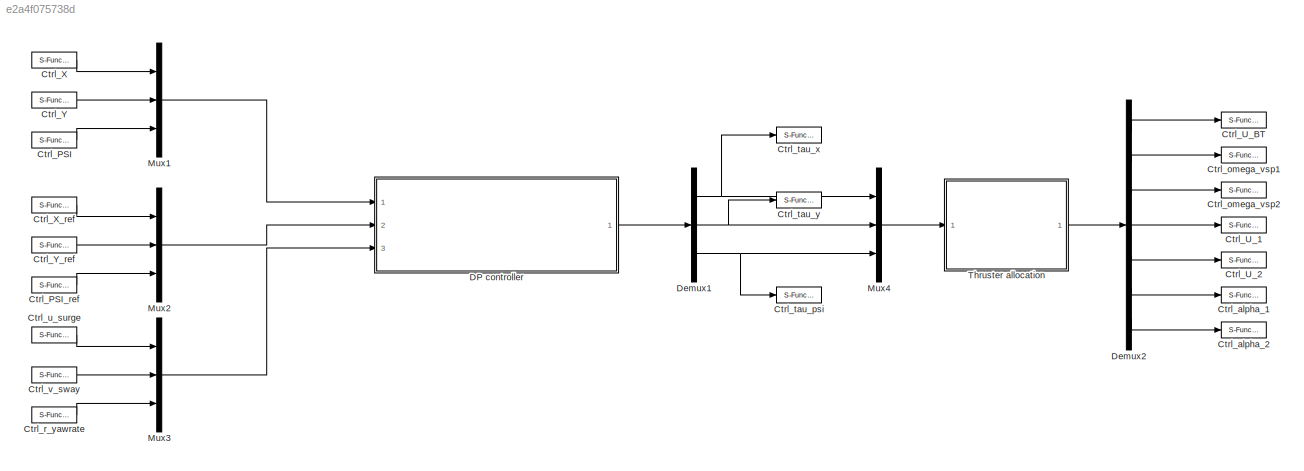
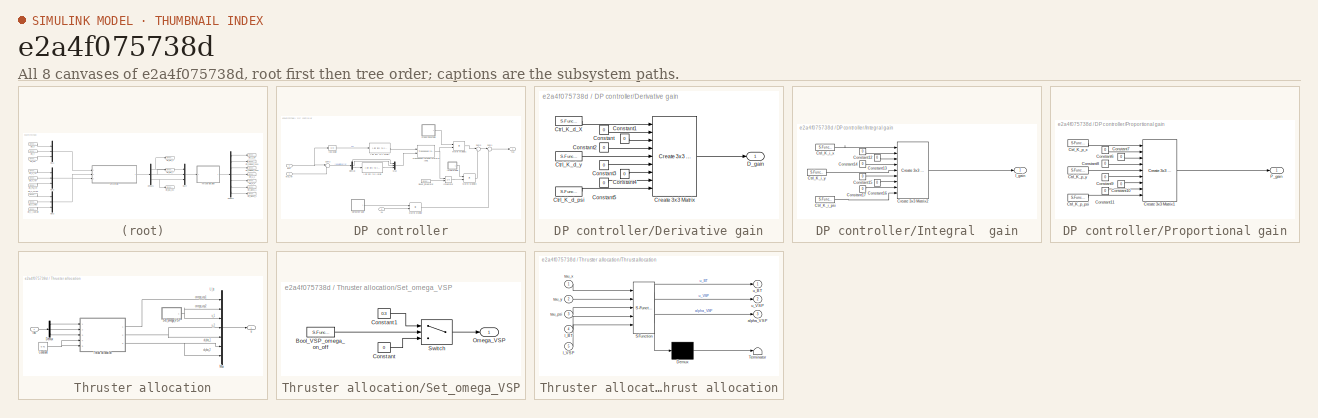
[diagram: thumbnail index - all 8 canvases of the model, root first then tree order]
MODEL slx_e2a4f075738d
KIND model
BLOCK [S-Function] Ctrl_PSI
  CopyFcn = NIVeriStand_MDL_functions('', 'IO_copy');
  DeleteFcn = NIVeriStand_MDL_functions('', 'IO_delete');
  EnableBusSupport = off
  FunctionName = NIVeriStandIO
  MoveFcn = set_param(gcb, 'Mask', 'on');
  Parameters = width dtype portnum stime stype btype
  Ports = [0, 1]
  Priority = 3
BLOCK [S-Function] Ctrl_PSI_ref
  CopyFcn = NIVeriStand_MDL_functions('', 'IO_copy');
  DeleteFcn = NIVeriStand_MDL_functions('', 'IO_delete');
  EnableBusSupport = off
  FunctionName = NIVeriStandIO
  MoveFcn = set_param(gcb, 'Mask', 'on');
  Parameters = width dtype portnum stime stype btype
  Ports = [0, 1]
  Priority = 6
BLOCK [S-Function] Ctrl_U_1
  CopyFcn = NIVeriStand_MDL_functions('', 'IO_copy');
  DeleteFcn = NIVeriStand_MDL_functions('', 'IO_delete');
  EnableBusSupport = off
  FunctionName = NIVeriStandIO
  MoveFcn = set_param(gcb, 'Mask', 'on');
  Parameters = width dtype portnum stime stype btype
  Ports = [1]
  Priority = 7
BLOCK [S-Function] Ctrl_U_2
  CopyFcn = NIVeriStand_MDL_functions('', 'IO_copy');
  DeleteFcn = NIVeriStand_MDL_functions('', 'IO_delete');
  EnableBusSupport = off
  FunctionName = NIVeriStandIO
  MoveFcn = set_param(gcb, 'Mask', 'on');
  Parameters = width dtype portnum stime stype btype
  Ports = [1]
  Priority = 8
BLOCK [S-Function] Ctrl_U_BT
  CopyFcn = NIVeriStand_MDL_functions('', 'IO_copy');
  DeleteFcn = NIVeriStand_MDL_functions('', 'IO_delete');
  EnableBusSupport = off
  FunctionName = NIVeriStandIO
  MoveFcn = set_param(gcb, 'Mask', 'on');
  Parameters = width dtype portnum stime stype btype
  Ports = [1]
  Priority = 4
BLOCK [S-Function] Ctrl_X
  CopyFcn = NIVeriStand_MDL_functions('', 'IO_copy');
  DeleteFcn = NIVeriStand_MDL_functions('', 'IO_delete');
  EnableBusSupport = off
  FunctionName = NIVeriStandIO
  MoveFcn = set_param(gcb, 'Mask', 'on');
  Parameters = width dtype portnum stime stype btype
  Ports = [0, 1]
  Priority = 1
BLOCK [S-Function] Ctrl_X_ref
  CopyFcn = NIVeriStand_MDL_functions('', 'IO_copy');
  DeleteFcn = NIVeriStand_MDL_functions('', 'IO_delete');
  EnableBusSupport = off
  FunctionName = NIVeriStandIO
  MoveFcn = set_param(gcb, 'Mask', 'on');
  Parameters = width dtype portnum stime stype btype
  Ports = [0, 1]
  Priority = 4
BLOCK [S-Function] Ctrl_Y
  CopyFcn = NIVeriStand_MDL_functions('', 'IO_copy');
  DeleteFcn = NIVeriStand_MDL_functions('', 'IO_delete');
  EnableBusSupport = off
  FunctionName = NIVeriStandIO
  MoveFcn = set_param(gcb, 'Mask', 'on');
  Parameters = width dtype portnum stime stype btype
  Ports = [0, 1]
  Priority = 2
BLOCK [S-Function] Ctrl_Y_ref
  CopyFcn = NIVeriStand_MDL_functions('', 'IO_copy');
  DeleteFcn = NIVeriStand_MDL_functions('', 'IO_delete');
  EnableBusSupport = off
  FunctionName = NIVeriStandIO
  MoveFcn = set_param(gcb, 'Mask', 'on');
  Parameters = width dtype portnum stime stype btype
  Ports = [0, 1]
  Priority = 5
BLOCK [S-Function] Ctrl_alpha_1
  CopyFcn = NIVeriStand_MDL_functions('', 'IO_copy');
  DeleteFcn = NIVeriStand_MDL_functions('', 'IO_delete');
  EnableBusSupport = off
  FunctionName = NIVeriStandIO
  MoveFcn = set_param(gcb, 'Mask', 'on');
  Parameters = width dtype portnum stime stype btype
  Ports = [1]
  Priority = 9
BLOCK [S-Function] Ctrl_alpha_2
  CopyFcn = NIVeriStand_MDL_functions('', 'IO_copy');
  DeleteFcn = NIVeriStand_MDL_functions('', 'IO_delete');
  EnableBusSupport = off
  FunctionName = NIVeriStandIO
  MoveFcn = set_param(gcb, 'Mask', 'on');
  Parameters = width dtype portnum stime stype btype
  Ports = [1]
  Priority = 10
BLOCK [S-Function] Ctrl_omega_vsp1
  CopyFcn = NIVeriStand_MDL_functions('', 'IO_copy');
  DeleteFcn = NIVeriStand_MDL_functions('', 'IO_delete');
  EnableBusSupport = off
  FunctionName = NIVeriStandIO
  MoveFcn = set_param(gcb, 'Mask', 'on');
  Parameters = width dtype portnum stime stype btype
  Ports = [1]
  Priority = 5
BLOCK [S-Function] Ctrl_omega_vsp2
  CopyFcn = NIVeriStand_MDL_functions('', 'IO_copy');
  DeleteFcn = NIVeriStand_MDL_functions('', 'IO_delete');
  EnableBusSupport = off
  FunctionName = NIVeriStandIO
  MoveFcn = set_param(gcb, 'Mask', 'on');
  Parameters = width dtype portnum stime stype btype
  Ports = [1]
  Priority = 6
BLOCK [S-Function] Ctrl_r_yawrate
  CopyFcn = NIVeriStand_MDL_functions('', 'IO_copy');
  DeleteFcn = NIVeriStand_MDL_functions('', 'IO_delete');
  EnableBusSupport = off
  FunctionName = NIVeriStandIO
  MoveFcn = set_param(gcb, 'Mask', 'on');
  Parameters = width dtype portnum stime stype btype
  Ports = [0, 1]
  Priority = 7
BLOCK [S-Function] Ctrl_tau_psi
  CopyFcn = NIVeriStand_MDL_functions('', 'IO_copy');
  DeleteFcn = NIVeriStand_MDL_functions('', 'IO_delete');
  EnableBusSupport = off
  FunctionName = NIVeriStandIO
  MoveFcn = set_param(gcb, 'Mask', 'on');
  Parameters = width dtype portnum stime stype btype
  Ports = [1]
  Priority = 3
BLOCK [S-Function] Ctrl_tau_x
  CopyFcn = NIVeriStand_MDL_functions('', 'IO_copy');
  DeleteFcn = NIVeriStand_MDL_functions('', 'IO_delete');
  EnableBusSupport = off
  FunctionName = NIVeriStandIO
  MoveFcn = set_param(gcb, 'Mask', 'on');
  Parameters = width dtype portnum stime stype btype
  Ports = [1]
  Priority = 1
BLOCK [S-Function] Ctrl_tau_y
  CopyFcn = NIVeriStand_MDL_functions('', 'IO_copy');
  DeleteFcn = NIVeriStand_MDL_functions('', 'IO_delete');
  EnableBusSupport = off
  FunctionName = NIVeriStandIO
  MoveFcn = set_param(gcb, 'Mask', 'on');
  Parameters = width dtype portnum stime stype btype
  Ports = [1]
  Priority = 2
BLOCK [S-Function] Ctrl_u_surge
  CopyFcn = NIVeriStand_MDL_functions('', 'IO_copy');
  DeleteFcn = NIVeriStand_MDL_functions('', 'IO_delete');
  EnableBusSupport = off
  FunctionName = NIVeriStandIO
  MoveFcn = set_param(gcb, 'Mask', 'on');
  Parameters = width dtype portnum stime stype btype
  Ports = [0, 1]
  Priority = 8
BLOCK [S-Function] Ctrl_v_sway
  CopyFcn = NIVeriStand_MDL_functions('', 'IO_copy');
  DeleteFcn = NIVeriStand_MDL_functions('', 'IO_delete');
  EnableBusSupport = off
  FunctionName = NIVeriStandIO
  MoveFcn = set_param(gcb, 'Mask', 'on');
  Parameters = width dtype portnum stime stype btype
  Ports = [0, 1]
  Priority = 9
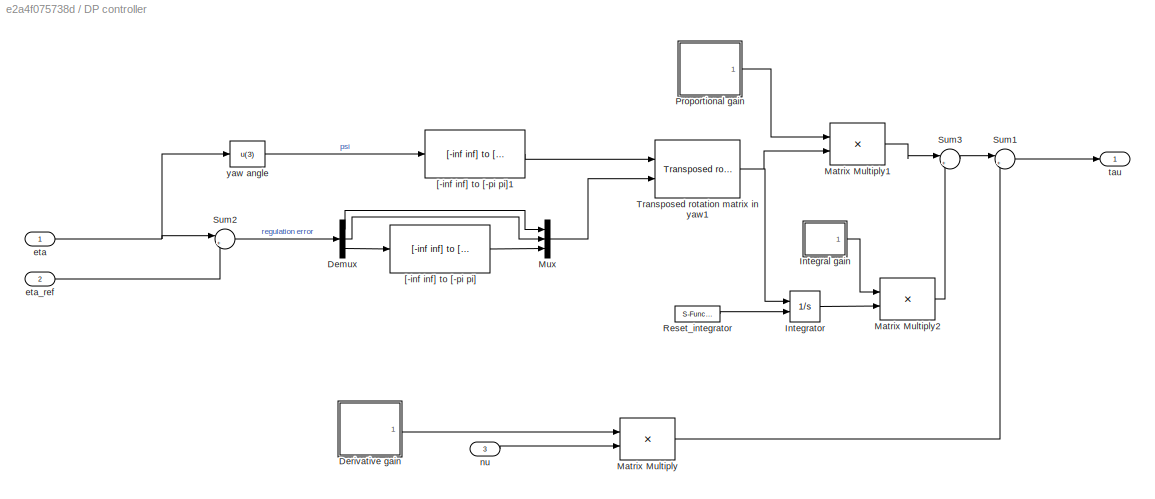
BLOCK [SubSystem] DP controller
  Ports = [3, 1]
  RequestExecContextInheritance = off
BLOCK [Demux] DP controller/Demux
  DisplayOption = bar
  Outputs = 3
  Ports = [1, 3]
BLOCK [SubSystem] DP controller/Derivative gain
  Ports = [0, 1]
  RequestExecContextInheritance = off
BLOCK [Constant] DP controller/Derivative gain/Constant
  Value = 0
BLOCK [Constant] DP controller/Derivative gain/Constant1
  Value = 0
BLOCK [Constant] DP controller/Derivative gain/Constant2
  Value = 0
BLOCK [Constant] DP controller/Derivative gain/Constant3
  Value = 0
BLOCK [Constant] DP controller/Derivative gain/Constant4
  Value = 0
BLOCK [Constant] DP controller/Derivative gain/Constant5
  Value = 0
BLOCK [Reference] DP controller/Derivative gain/Create 3x3 Matrix  REF=aerolibutil/Create 3x3 Matrix
  Ports = [9, 1]
  SourceBlock = aerolibutil/Create 3x3 Matrix
  SourceType = Create 3x3 Matrix
BLOCK [S-Function] DP controller/Derivative gain/Ctrl_K_d_X
  CopyFcn = NIVeriStand_MDL_functions('', 'IO_copy');
  DeleteFcn = NIVeriStand_MDL_functions('', 'IO_delete');
  EnableBusSupport = off
  FunctionName = NIVeriStandIO
  MoveFcn = set_param(gcb, 'Mask', 'on');
  Parameters = width dtype portnum stime stype btype
  Ports = [0, 1]
  Priority = 1
BLOCK [S-Function] DP controller/Derivative gain/Ctrl_K_d_psi
  CopyFcn = NIVeriStand_MDL_functions('', 'IO_copy');
  DeleteFcn = NIVeriStand_MDL_functions('', 'IO_delete');
  EnableBusSupport = off
  FunctionName = NIVeriStandIO
  MoveFcn = set_param(gcb, 'Mask', 'on');
  Parameters = width dtype portnum stime stype btype
  Ports = [0, 1]
  Priority = 2
BLOCK [S-Function] DP controller/Derivative gain/Ctrl_K_d_y
  CopyFcn = NIVeriStand_MDL_functions('', 'IO_copy');
  DeleteFcn = NIVeriStand_MDL_functions('', 'IO_delete');
  EnableBusSupport = off
  FunctionName = NIVeriStandIO
  MoveFcn = set_param(gcb, 'Mask', 'on');
  Parameters = width dtype portnum stime stype btype
  Ports = [0, 1]
  Priority = 3
BLOCK [Outport] DP controller/Derivative gain/D_gain
  IconDisplay = Port number
BLOCK [SubSystem] DP controller/Integral  gain
  Ports = [0, 1]
  RequestExecContextInheritance = off
BLOCK [Constant] DP controller/Integral  gain/Constant12
  Value = 0
BLOCK [Constant] DP controller/Integral  gain/Constant13
  Value = 0
BLOCK [Constant] DP controller/Integral  gain/Constant14
  Value = 0
BLOCK [Constant] DP controller/Integral  gain/Constant15
  Value = 0
BLOCK [Constant] DP controller/Integral  gain/Constant16
  Value = 0
BLOCK [Constant] DP controller/Integral  gain/Constant17
  Value = 0
BLOCK [Reference] DP controller/Integral  gain/Create 3x3 Matrix2  REF=aerolibutil/Create 3x3 Matrix
  Ports = [9, 1]
  SourceBlock = aerolibutil/Create 3x3 Matrix
  SourceType = Create 3x3 Matrix
BLOCK [S-Function] DP controller/Integral  gain/Ctrl_K_i_psi
  CopyFcn = NIVeriStand_MDL_functions('', 'IO_copy');
  DeleteFcn = NIVeriStand_MDL_functions('', 'IO_delete');
  EnableBusSupport = off
  FunctionName = NIVeriStandIO
  MoveFcn = set_param(gcb, 'Mask', 'on');
  Parameters = width dtype portnum stime stype btype
  Ports = [0, 1]
  Priority = 1
BLOCK [S-Function] DP controller/Integral  gain/Ctrl_K_i_x
  CopyFcn = NIVeriStand_MDL_functions('', 'IO_copy');
  DeleteFcn = NIVeriStand_MDL_functions('', 'IO_delete');
  EnableBusSupport = off
  FunctionName = NIVeriStandIO
  MoveFcn = set_param(gcb, 'Mask', 'on');
  Parameters = width dtype portnum stime stype btype
  Ports = [0, 1]
  Priority = 2
BLOCK [S-Function] DP controller/Integral  gain/Ctrl_K_i_y
  CopyFcn = NIVeriStand_MDL_functions('', 'IO_copy');
  DeleteFcn = NIVeriStand_MDL_functions('', 'IO_delete');
  EnableBusSupport = off
  FunctionName = NIVeriStandIO
  MoveFcn = set_param(gcb, 'Mask', 'on');
  Parameters = width dtype portnum stime stype btype
  Ports = [0, 1]
  Priority = 3
BLOCK [Outport] DP controller/Integral  gain/I_gain
  IconDisplay = Port number
BLOCK [Integrator] DP controller/Integrator
  ExternalReset = level
  Ports = [2, 1]
BLOCK [Product] DP controller/Matrix Multiply
  InputSameDT = off
  Multiplication = Matrix(*)
  OutDataTypeStr = Inherit: Inherit via internal rule
  Ports = [2, 1]
  RndMeth = Floor
  SaturateOnIntegerOverflow = off
BLOCK [Product] DP controller/Matrix Multiply1
  InputSameDT = off
  Multiplication = Matrix(*)
  OutDataTypeStr = Inherit: Inherit via internal rule
  Ports = [2, 1]
  RndMeth = Floor
  SaturateOnIntegerOverflow = off
BLOCK [Product] DP controller/Matrix Multiply2
  InputSameDT = off
  Multiplication = Matrix(*)
  OutDataTypeStr = Inherit: Inherit via internal rule
  Ports = [2, 1]
  RndMeth = Floor
  SaturateOnIntegerOverflow = off
BLOCK [Mux] DP controller/Mux
  DisplayOption = bar
  Inputs = 3
  Ports = [3, 1]
BLOCK [SubSystem] DP controller/Proportional gain
  Ports = [0, 1]
  RequestExecContextInheritance = off
BLOCK [Constant] DP controller/Proportional gain/Constant10
  Value = 0
BLOCK [Constant] DP controller/Proportional gain/Constant11
  Value = 0
BLOCK [Constant] DP controller/Proportional gain/Constant6
  Value = 0
BLOCK [Constant] DP controller/Proportional gain/Constant7
  Value = 0
BLOCK [Constant] DP controller/Proportional gain/Constant8
  Value = 0
BLOCK [Constant] DP controller/Proportional gain/Constant9
  Value = 0
BLOCK [Reference] DP controller/Proportional gain/Create 3x3 Matrix1  REF=aerolibutil/Create 3x3 Matrix
  Ports = [9, 1]
  SourceBlock = aerolibutil/Create 3x3 Matrix
  SourceType = Create 3x3 Matrix
BLOCK [S-Function] DP controller/Proportional gain/Ctrl_K_p_psi
  CopyFcn = NIVeriStand_MDL_functions('', 'IO_copy');
  DeleteFcn = NIVeriStand_MDL_functions('', 'IO_delete');
  EnableBusSupport = off
  FunctionName = NIVeriStandIO
  MoveFcn = set_param(gcb, 'Mask', 'on');
  Parameters = width dtype portnum stime stype btype
  Ports = [0, 1]
  Priority = 1
BLOCK [S-Function] DP controller/Proportional gain/Ctrl_K_p_x
  CopyFcn = NIVeriStand_MDL_functions('', 'IO_copy');
  DeleteFcn = NIVeriStand_MDL_functions('', 'IO_delete');
  EnableBusSupport = off
  FunctionName = NIVeriStandIO
  MoveFcn = set_param(gcb, 'Mask', 'on');
  Parameters = width dtype portnum stime stype btype
  Ports = [0, 1]
  Priority = 2
BLOCK [S-Function] DP controller/Proportional gain/Ctrl_K_p_y
  CopyFcn = NIVeriStand_MDL_functions('', 'IO_copy');
  DeleteFcn = NIVeriStand_MDL_functions('', 'IO_delete');
  EnableBusSupport = off
  FunctionName = NIVeriStandIO
  MoveFcn = set_param(gcb, 'Mask', 'on');
  Parameters = width dtype portnum stime stype btype
  Ports = [0, 1]
  Priority = 3
BLOCK [Outport] DP controller/Proportional gain/P_gain
  IconDisplay = Port number
BLOCK [S-Function] DP controller/Reset_integrator
  CopyFcn = NIVeriStand_MDL_functions('', 'IO_copy');
  DeleteFcn = NIVeriStand_MDL_functions('', 'IO_delete');
  EnableBusSupport = off
  FunctionName = NIVeriStandIO
  MoveFcn = set_param(gcb, 'Mask', 'on');
  Parameters = width dtype portnum stime stype btype
  Ports = [0, 1]
  Priority = 1
BLOCK [Sum] DP controller/Sum1
  IconShape = round
  Inputs = |+-
  Ports = [2, 1]
BLOCK [Sum] DP controller/Sum2
  IconShape = round
  Inputs = |+-
  Ports = [2, 1]
BLOCK [Sum] DP controller/Sum3
  IconShape = round
  Inputs = |++
  Ports = [2, 1]
BLOCK [Reference] DP controller/Transposed rotation matrix in yaw1  REF=marine_gnc/Models/ Kinematics/Transposed rotation  (lib defined in mdl_10d96c221ba8, mdl_45f1105420c6)
 matrix in yaw
  Ports = [2, 1]
  SourceBlock = marine_gnc/Models/ Kinematics/Transposed rotation\n matrix in yaw
BLOCK [Reference] DP controller/[-inf inf] to [-pi pi]  REF=marine_gnc/Utilities/Math Operations/[-inf inf] to [-pi pi]  (lib defined in mdl_10d96c221ba8, mdl_45f1105420c6)
  Ports = [1, 1]
  SourceBlock = marine_gnc/Utilities/Math Operations/[-inf inf] to [-pi pi]
  SourceType = [-inf inf] to [-pi pi]
BLOCK [Reference] DP controller/[-inf inf] to [-pi pi]1  REF=marine_gnc/Utilities/Math Operations/[-inf inf] to [-pi pi]  (lib defined in mdl_10d96c221ba8, mdl_45f1105420c6)
  Ports = [1, 1]
  SourceBlock = marine_gnc/Utilities/Math Operations/[-inf inf] to [-pi pi]
  SourceType = [-inf inf] to [-pi pi]
BLOCK [Inport] DP controller/eta
  IconDisplay = Port number
BLOCK [Inport] DP controller/eta_ref
  IconDisplay = Port number
  Port = 2
BLOCK [Inport] DP controller/nu
  IconDisplay = Port number
  Port = 3
BLOCK [Outport] DP controller/tau
  IconDisplay = Port number
BLOCK [Fcn] DP controller/yaw angle
  Expr = u(3)
BLOCK [Demux] Demux1
  DisplayOption = bar
  Outputs = 3
  Ports = [1, 3]
BLOCK [Demux] Demux2
  DisplayOption = bar
  Outputs = 7
  Ports = [1, 7]
BLOCK [Mux] Mux1
  DisplayOption = bar
  Inputs = 3
  Ports = [3, 1]
BLOCK [Mux] Mux2
  DisplayOption = bar
  Inputs = 3
  Ports = [3, 1]
BLOCK [Mux] Mux3
  DisplayOption = bar
  Inputs = 3
  Ports = [3, 1]
BLOCK [Mux] Mux4
  DisplayOption = bar
  Inputs = 3
  Ports = [3, 1]
BLOCK [SubSystem] Thruster allocation
  Ports = [1, 1]
  RequestExecContextInheritance = off
BLOCK [Constant] Thruster allocation/Constant
  Value = 0.42
BLOCK [Demux] Thruster allocation/Demux
  DisplayOption = bar
  Outputs = 3
  Ports = [1, 3]
BLOCK [Mux] Thruster allocation/Mux
  DisplayOption = bar
  Inputs = 7
  Ports = [7, 1]
BLOCK [SubSystem] Thruster allocation/Set_omega_VSP
  Ports = [0, 1]
  RequestExecContextInheritance = off
BLOCK [S-Function] Thruster allocation/Set_omega_VSP/Bool_VSP_omega_on_off
  CopyFcn = NIVeriStand_MDL_functions('', 'IO_copy');
  DeleteFcn = NIVeriStand_MDL_functions('', 'IO_delete');
  EnableBusSupport = off
  FunctionName = NIVeriStandIO
  MoveFcn = set_param(gcb, 'Mask', 'on');
  Parameters = width dtype portnum stime stype btype
  Ports = [0, 1]
  Priority = 1
BLOCK [Constant] Thruster allocation/Set_omega_VSP/Constant
  Value = 0
BLOCK [Constant] Thruster allocation/Set_omega_VSP/Constant1
  Value = 0.3
BLOCK [Outport] Thruster allocation/Set_omega_VSP/Omega_VSP
  IconDisplay = Port number
BLOCK [Switch] Thruster allocation/Set_omega_VSP/Switch
  Criteria = u2 ~= 0
  InputSameDT = off
  SaturateOnIntegerOverflow = off
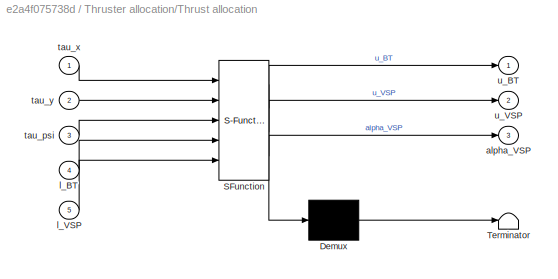
BLOCK [SubSystem] Thruster allocation/Thrust allocation
  ErrorFcn = Stateflow.Translate.translate
  PermitHierarchicalResolution = ExplicitOnly
  Ports = [5, 3]
  RequestExecContextInheritance = off
  SFBlockType = MATLAB Function
  TreatAsAtomicUnit = on
BLOCK [Demux] Thruster allocation/Thrust allocation/ Demux 
  Outputs = 1
  Ports = [1, 1]
BLOCK [S-Function] Thruster allocation/Thrust allocation/ SFunction 
  EnableBusSupport = on
  FunctionName = sf_sfun
  PortCounts = [5 4]
  Ports = [5, 4]
  Tag = Stateflow S-Function ctrl_DP_mss 2
BLOCK [Terminator] Thruster allocation/Thrust allocation/ Terminator 
BLOCK [Outport] Thruster allocation/Thrust allocation/alpha_VSP
  IconDisplay = Port number
  Port = 3
BLOCK [Inport] Thruster allocation/Thrust allocation/l_BT
  IconDisplay = Port number
  Port = 4
BLOCK [Inport] Thruster allocation/Thrust allocation/l_VSP
  IconDisplay = Port number
  Port = 5
BLOCK [Inport] Thruster allocation/Thrust allocation/tau_psi
  IconDisplay = Port number
  Port = 3
BLOCK [Inport] Thruster allocation/Thrust allocation/tau_x
  IconDisplay = Port number
BLOCK [Inport] Thruster allocation/Thrust allocation/tau_y
  IconDisplay = Port number
  Port = 2
BLOCK [Outport] Thruster allocation/Thrust allocation/u_BT
  IconDisplay = Port number
BLOCK [Outport] Thruster allocation/Thrust allocation/u_VSP
  IconDisplay = Port number
  Port = 2
BLOCK [Inport] Thruster allocation/tau
  IconDisplay = Port number
BLOCK [Outport] Thruster allocation/u
  IconDisplay = Port number
ANNOTATION Thruster allocation: U_bt
ANNOTATION Thruster allocation: alpha_1
ANNOTATION Thruster allocation: alpha_2
ANNOTATION Thruster allocation: omega_vsp1
ANNOTATION Thruster allocation: omega_vsp2
ANNOTATION Thruster allocation: u_1
ANNOTATION Thruster allocation: u_2
LINE Ctrl_PSI:1 -> Mux1:3
LINE Ctrl_PSI_ref:1 -> Mux2:3
LINE Ctrl_X:1 -> Mux1:1
LINE Ctrl_X_ref:1 -> Mux2:1
LINE Ctrl_Y:1 -> Mux1:2
LINE Ctrl_Y_ref:1 -> Mux2:2
LINE Ctrl_r_yawrate:1 -> Mux3:3
LINE Ctrl_u_surge:1 -> Mux3:1
LINE Ctrl_v_sway:1 -> Mux3:2
LINE DP controller/Demux:1 -> DP controller/Mux:1
LINE DP controller/Demux:2 -> DP controller/Mux:2
LINE DP controller/Demux:3 -> DP controller/[-inf inf] to [-pi pi]:1
LINE DP controller/Derivative gain/Constant1:1 -> DP controller/Derivative gain/Create 3x3 Matrix:3
LINE DP controller/Derivative gain/Constant2:1 -> DP controller/Derivative gain/Create 3x3 Matrix:4
LINE DP controller/Derivative gain/Constant3:1 -> DP controller/Derivative gain/Create 3x3 Matrix:6
LINE DP controller/Derivative gain/Constant4:1 -> DP controller/Derivative gain/Create 3x3 Matrix:7
LINE DP controller/Derivative gain/Constant5:1 -> DP controller/Derivative gain/Create 3x3 Matrix:8
LINE DP controller/Derivative gain/Constant:1 -> DP controller/Derivative gain/Create 3x3 Matrix:2
LINE DP controller/Derivative gain/Create 3x3 Matrix:1 -> DP controller/Derivative gain/D_gain:1
LINE DP controller/Derivative gain/Ctrl_K_d_X:1 -> DP controller/Derivative gain/Create 3x3 Matrix:1
LINE DP controller/Derivative gain/Ctrl_K_d_psi:1 -> DP controller/Derivative gain/Create 3x3 Matrix:9
LINE DP controller/Derivative gain/Ctrl_K_d_y:1 -> DP controller/Derivative gain/Create 3x3 Matrix:5
LINE DP controller/Derivative gain:1 -> DP controller/Matrix Multiply:1
LINE DP controller/Integral  gain/Constant12:1 -> DP controller/Integral  gain/Create 3x3 Matrix2:2
LINE DP controller/Integral  gain/Constant13:1 -> DP controller/Integral  gain/Create 3x3 Matrix2:3
LINE DP controller/Integral  gain/Constant14:1 -> DP controller/Integral  gain/Create 3x3 Matrix2:4
LINE DP controller/Integral  gain/Constant15:1 -> DP controller/Integral  gain/Create 3x3 Matrix2:6
LINE DP controller/Integral  gain/Constant16:1 -> DP controller/Integral  gain/Create 3x3 Matrix2:7
LINE DP controller/Integral  gain/Constant17:1 -> DP controller/Integral  gain/Create 3x3 Matrix2:8
LINE DP controller/Integral  gain/Create 3x3 Matrix2:1 -> DP controller/Integral  gain/I_gain:1
LINE DP controller/Integral  gain/Ctrl_K_i_psi:1 -> DP controller/Integral  gain/Create 3x3 Matrix2:9
LINE DP controller/Integral  gain/Ctrl_K_i_x:1 -> DP controller/Integral  gain/Create 3x3 Matrix2:1
LINE DP controller/Integral  gain/Ctrl_K_i_y:1 -> DP controller/Integral  gain/Create 3x3 Matrix2:5
LINE DP controller/Integral  gain:1 -> DP controller/Matrix Multiply2:1
LINE DP controller/Integrator:1 -> DP controller/Matrix Multiply2:2
LINE DP controller/Matrix Multiply1:1 -> DP controller/Sum3:1
LINE DP controller/Matrix Multiply2:1 -> DP controller/Sum3:2
LINE DP controller/Matrix Multiply:1 -> DP controller/Sum1:2
LINE DP controller/Mux:1 -> DP controller/Transposed rotation matrix in yaw1:2
LINE DP controller/Proportional gain/Constant10:1 -> DP controller/Proportional gain/Create 3x3 Matrix1:7
LINE DP controller/Proportional gain/Constant11:1 -> DP controller/Proportional gain/Create 3x3 Matrix1:8
LINE DP controller/Proportional gain/Constant6:1 -> DP controller/Proportional gain/Create 3x3 Matrix1:2
LINE DP controller/Proportional gain/Constant7:1 -> DP controller/Proportional gain/Create 3x3 Matrix1:3
LINE DP controller/Proportional gain/Constant8:1 -> DP controller/Proportional gain/Create 3x3 Matrix1:4
LINE DP controller/Proportional gain/Constant9:1 -> DP controller/Proportional gain/Create 3x3 Matrix1:6
LINE DP controller/Proportional gain/Create 3x3 Matrix1:1 -> DP controller/Proportional gain/P_gain:1
LINE DP controller/Proportional gain/Ctrl_K_p_psi:1 -> DP controller/Proportional gain/Create 3x3 Matrix1:9
LINE DP controller/Proportional gain/Ctrl_K_p_x:1 -> DP controller/Proportional gain/Create 3x3 Matrix1:1
LINE DP controller/Proportional gain/Ctrl_K_p_y:1 -> DP controller/Proportional gain/Create 3x3 Matrix1:5
LINE DP controller/Proportional gain:1 -> DP controller/Matrix Multiply1:1
LINE DP controller/Reset_integrator:1 -> DP controller/Integrator:2
LINE DP controller/Sum1:1 -> DP controller/tau:1
LINE DP controller/Sum2:1 -> DP controller/Demux:1
LINE DP controller/Sum3:1 -> DP controller/Sum1:1
NET DP controller/Transposed rotation matrix in yaw1:1 -> DP controller/Integrator:1, DP controller/Matrix Multiply1:2
LINE DP controller/[-inf inf] to [-pi pi]1:1 -> DP controller/Transposed rotation matrix in yaw1:1
LINE DP controller/[-inf inf] to [-pi pi]:1 -> DP controller/Mux:3
NET DP controller/eta:1 -> DP controller/Sum2:1, DP controller/yaw angle:1
LINE DP controller/eta_ref:1 -> DP controller/Sum2:2
LINE DP controller/nu:1 -> DP controller/Matrix Multiply:2
LINE DP controller/yaw angle:1 -> DP controller/[-inf inf] to [-pi pi]1:1
LINE DP controller:1 -> Demux1:1
NET Demux1:1 -> Ctrl_tau_x:1, Mux4:1
NET Demux1:2 -> Ctrl_tau_y:1, Mux4:2
NET Demux1:3 -> Ctrl_tau_psi:1, Mux4:3
LINE Demux2:1 -> Ctrl_U_BT:1
LINE Demux2:2 -> Ctrl_omega_vsp1:1
LINE Demux2:3 -> Ctrl_omega_vsp2:1
LINE Demux2:4 -> Ctrl_U_1:1
LINE Demux2:5 -> Ctrl_U_2:1
LINE Demux2:6 -> Ctrl_alpha_1:1
LINE Demux2:7 -> Ctrl_alpha_2:1
LINE Mux1:1 -> DP controller:1
LINE Mux2:1 -> DP controller:2
LINE Mux3:1 -> DP controller:3
LINE Mux4:1 -> Thruster allocation:1
NET Thruster allocation/Constant:1 -> Thruster allocation/Thrust allocation:4, Thruster allocation/Thrust allocation:5
LINE Thruster allocation/Demux:1 -> Thruster allocation/Thrust allocation:1
LINE Thruster allocation/Demux:2 -> Thruster allocation/Thrust allocation:2
LINE Thruster allocation/Demux:3 -> Thruster allocation/Thrust allocation:3
LINE Thruster allocation/Mux:1 -> Thruster allocation/u:1
LINE Thruster allocation/Set_omega_VSP/Bool_VSP_omega_on_off:1 -> Thruster allocation/Set_omega_VSP/Switch:2
LINE Thruster allocation/Set_omega_VSP/Constant1:1 -> Thruster allocation/Set_omega_VSP/Switch:1
LINE Thruster allocation/Set_omega_VSP/Constant:1 -> Thruster allocation/Set_omega_VSP/Switch:3
LINE Thruster allocation/Set_omega_VSP/Switch:1 -> Thruster allocation/Set_omega_VSP/Omega_VSP:1
NET Thruster allocation/Set_omega_VSP:1 -> Thruster allocation/Mux:2, Thruster allocation/Mux:3
LINE Thruster allocation/Thrust allocation:1 -> Thruster allocation/Mux:1
NET Thruster allocation/Thrust allocation:2 -> Thruster allocation/Mux:4, Thruster allocation/Mux:5
NET Thruster allocation/Thrust allocation:3 -> Thruster allocation/Mux:6, Thruster allocation/Mux:7
LINE Thruster allocation/tau:1 -> Thruster allocation/Demux:1
LINE Thruster allocation:1 -> Demux2:1
note: NET lines group one-source signal fan-out (src -> all destinations, sorted); 1:1 wires keep LINE
